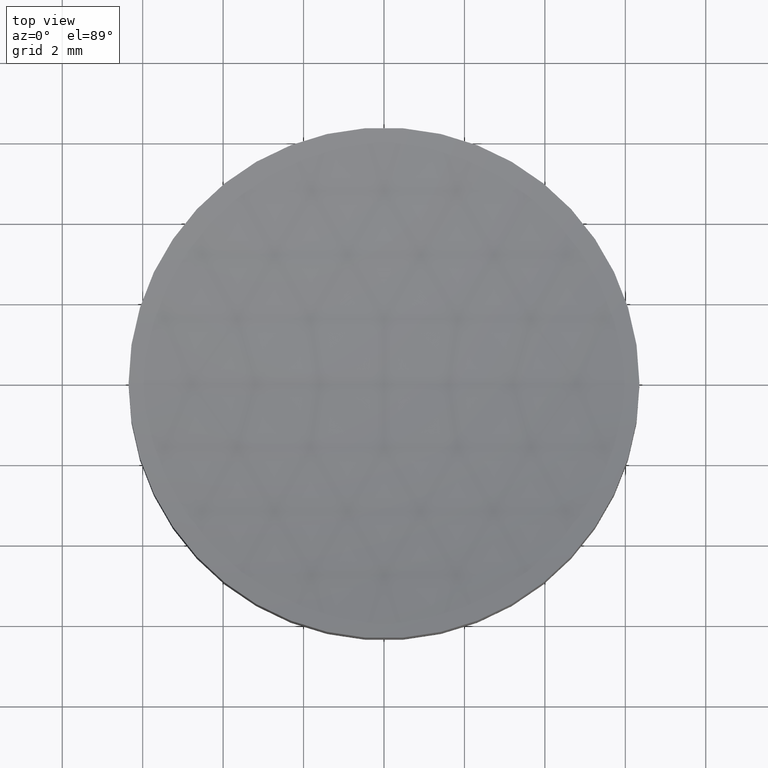
[diagram: clean part render]
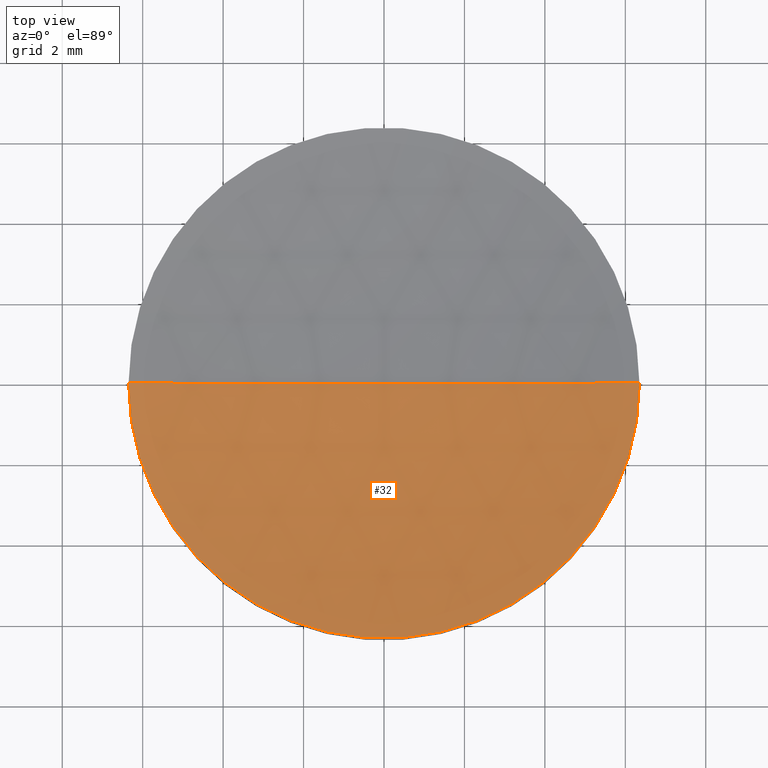
[diagram: same view with one face highlighted and labeled with its STEP entity id]
A machine part, top view. The second image highlights one B-rep face of the part: STEP entity #32.
In plain terms, the highlighted spherical surface has radius 25 mm.
Its self-contained STEP definition (entity closure, byte-faithful):
#4 = EDGE_CURVE ( 'NONE', #176, #29, #129, .T. ) ;
#6 = CARTESIAN_POINT ( 'NONE',  ( 6.350000000000015632, 7.776507174585711884E-16, 2.999999999999999112 ) ) ;
#16 = FACE_OUTER_BOUND ( 'NONE', #39, .T. ) ;
#18 = AXIS2_PLACEMENT_3D ( 'NONE', #113, #52, #187 ) ;
#23 = AXIS2_PLACEMENT_3D ( 'NONE', #104, #145, #84 ) ;
#29 = VERTEX_POINT ( 'NONE', #64 ) ;
#30 = EDGE_CURVE ( 'NONE', #77, #29, #111, .T. ) ;
#32 = ADVANCED_FACE ( 'NONE', ( #16 ), #40, .F. ) ;
#39 = EDGE_LOOP ( 'NONE', ( #155, #43, #114 ) ) ;
#40 = SPHERICAL_SURFACE ( 'NONE', #23, 25.00000000000000000 ) ;
#43 = ORIENTED_EDGE ( 'NONE', *, *, #51, .F. ) ;
#51 = EDGE_CURVE ( 'NONE', #176, #77, #186, .T. ) ;
#52 = DIRECTION ( 'NONE',  ( 0.000000000000000000, 1.000000000000000000, -0.000000000000000000 ) ) ;
#64 = CARTESIAN_POINT ( 'NONE',  ( 5.867617188876208666E-15, 0.000000000000000000, 2.180105458827096054 ) ) ;
#68 = DIRECTION ( 'NONE',  ( 1.000000000000000000, 0.000000000000000000, 0.000000000000000000 ) ) ;
#77 = VERTEX_POINT ( 'NONE', #115 ) ;
#84 = DIRECTION ( 'NONE',  ( 1.000000000000000000, 0.000000000000000000, 0.000000000000000000 ) ) ;
#91 = AXIS2_PLACEMENT_3D ( 'NONE', #97, #128, #190 ) ;
#97 = CARTESIAN_POINT ( 'NONE',  ( 4.336808689942017736E-15, 0.000000000000000000, 27.18010545882709650 ) ) ;
#101 = CARTESIAN_POINT ( 'NONE',  ( 4.336808689942017736E-15, 0.000000000000000000, 2.999999999999999112 ) ) ;
#104 = CARTESIAN_POINT ( 'NONE',  ( 4.336808689942017736E-15, 0.000000000000000000, 27.18010545882709650 ) ) ;
#111 = CIRCLE ( 'NONE', #91, 25.00000000000000000 ) ;
#113 = CARTESIAN_POINT ( 'NONE',  ( 4.336808689942017736E-15, 0.000000000000000000, 27.18010545882709650 ) ) ;
#114 = ORIENTED_EDGE ( 'NONE', *, *, #4, .T. ) ;
#115 = CARTESIAN_POINT ( 'NONE',  ( -6.350000000000006750, 0.000000000000000000, 2.999999999999999112 ) ) ;
#128 = DIRECTION ( 'NONE',  ( 1.224646799147353207E-16, -1.000000000000000000, 0.000000000000000000 ) ) ;
#129 = CIRCLE ( 'NONE', #18, 25.00000000000000000 ) ;
#145 = DIRECTION ( 'NONE',  ( 0.000000000000000000, -1.000000000000000000, -0.000000000000000000 ) ) ;
#155 = ORIENTED_EDGE ( 'NONE', *, *, #30, .F. ) ;
#176 = VERTEX_POINT ( 'NONE', #6 ) ;
#186 = CIRCLE ( 'NONE', #199, 6.350000000000011191 ) ;
#187 = DIRECTION ( 'NONE',  ( 0.000000000000000000, 0.000000000000000000, 1.000000000000000000 ) ) ;
#189 = DIRECTION ( 'NONE',  ( -0.000000000000000000, -0.000000000000000000, -1.000000000000000000 ) ) ;
#190 = DIRECTION ( 'NONE',  ( 1.000000000000000000, 1.224646799147353207E-16, 0.000000000000000000 ) ) ;
#199 = AXIS2_PLACEMENT_3D ( 'NONE', #101, #189, #68 ) ;